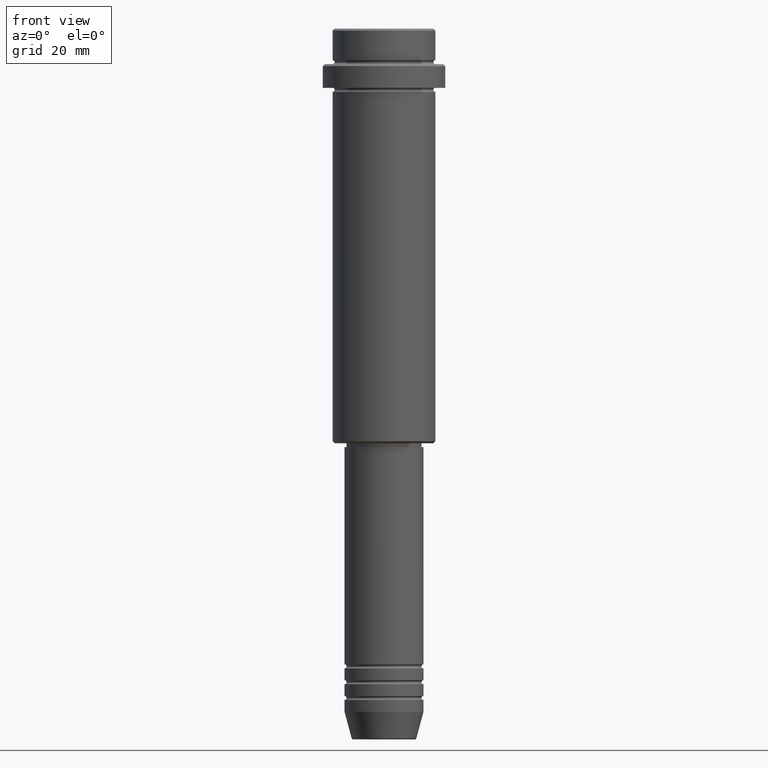
[diagram: clean part render]
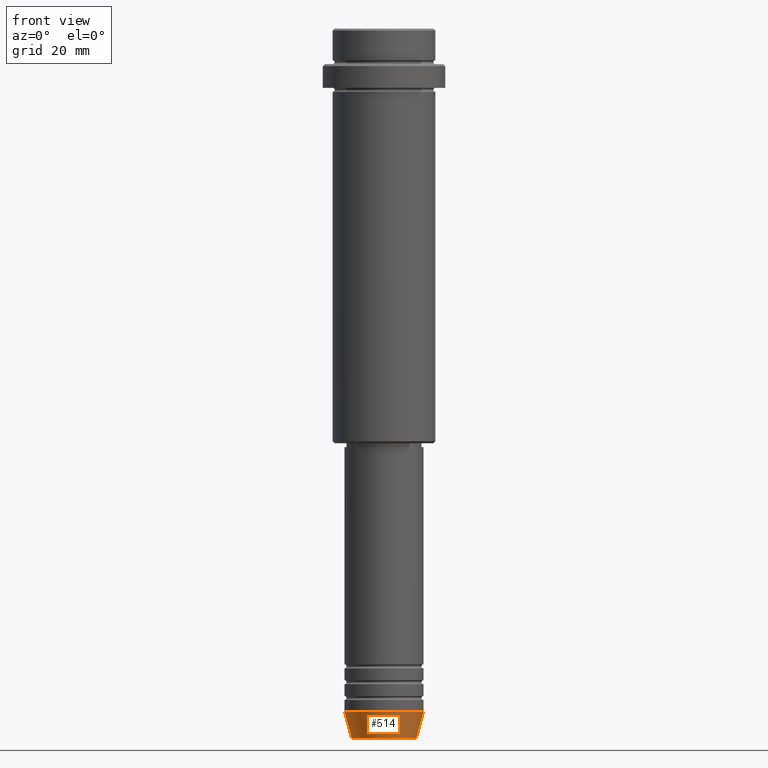
[diagram: same view with one face highlighted and labeled with its STEP entity id]
A machine part, front view. The second image highlights one B-rep face of the part: STEP entity #514.
In plain terms, the highlighted conical surface has half-angle 15 deg.
Its self-contained STEP definition (entity closure, byte-faithful):
#55 = LINE ( 'NONE', #152, #74 ) ;
#74 = VECTOR ( 'NONE', #705, 1000.000000000000000 ) ;
#91 = ORIENTED_EDGE ( 'NONE', *, *, #995, .T. ) ;
#106 = DIRECTION ( 'NONE',  ( -0.000000000000000000, -0.000000000000000000, 1.000000000000000000 ) ) ;
#152 = CARTESIAN_POINT ( 'NONE',  ( 10.00000000000000000, 0.000000000000000000, -173.0000000000000000 ) ) ;
#237 = DIRECTION ( 'NONE',  ( -0.2588190451025213501, 3.169619151431772337E-17, 0.9659258262890680902 ) ) ;
#242 = DIRECTION ( 'NONE',  ( -0.000000000000000000, -0.000000000000000000, 1.000000000000000000 ) ) ;
#244 = DIRECTION ( 'NONE',  ( -0.000000000000000000, -0.000000000000000000, 1.000000000000000000 ) ) ;
#259 = ORIENTED_EDGE ( 'NONE', *, *, #678, .T. ) ;
#323 = CIRCLE ( 'NONE', #874, 10.00000000000000000 ) ;
#330 = FACE_OUTER_BOUND ( 'NONE', #1198, .T. ) ;
#339 = CARTESIAN_POINT ( 'NONE',  ( 8.223655072137191269, 0.000000000000000000, -179.6294095225512422 ) ) ;
#413 = CIRCLE ( 'NONE', #1216, 8.223655072137191269 ) ;
#454 = CARTESIAN_POINT ( 'NONE',  ( -8.223655072137191269, 1.115877042642912054E-15, -179.6294095225512422 ) ) ;
#514 = ADVANCED_FACE ( 'NONE', ( #330 ), #827, .T. ) ;
#515 = VERTEX_POINT ( 'NONE', #339 ) ;
#552 = DIRECTION ( 'NONE',  ( 1.000000000000000000, 0.000000000000000000, 0.000000000000000000 ) ) ;
#572 = CARTESIAN_POINT ( 'NONE',  ( -10.00000000000000000, 1.224646799147353256E-15, -173.0000000000000000 ) ) ;
#678 = EDGE_CURVE ( 'NONE', #515, #1162, #55, .T. ) ;
#685 = CARTESIAN_POINT ( 'NONE',  ( 0.000000000000000000, 0.000000000000000000, -179.6294095225512422 ) ) ;
#705 = DIRECTION ( 'NONE',  ( 0.2588190451025213501, 0.000000000000000000, 0.9659258262890680902 ) ) ;
#725 = CARTESIAN_POINT ( 'NONE',  ( 10.00000000000000000, 0.000000000000000000, -173.0000000000000000 ) ) ;
#733 = ORIENTED_EDGE ( 'NONE', *, *, #975, .F. ) ;
#778 = VERTEX_POINT ( 'NONE', #956 ) ;
#783 = CARTESIAN_POINT ( 'NONE',  ( 0.000000000000000000, 0.000000000000000000, -173.0000000000000000 ) ) ;
#827 = CONICAL_SURFACE ( 'NONE', #1399, 10.00000000000000000, 0.2617993877991500740 ) ;
#873 = EDGE_CURVE ( 'NONE', #778, #1162, #323, .T. ) ;
#874 = AXIS2_PLACEMENT_3D ( 'NONE', #783, #242, #1097 ) ;
#879 = VERTEX_POINT ( 'NONE', #454 ) ;
#886 = ORIENTED_EDGE ( 'NONE', *, *, #873, .F. ) ;
#956 = CARTESIAN_POINT ( 'NONE',  ( -10.00000000000000000, 1.224646799147353256E-15, -173.0000000000000000 ) ) ;
#975 = EDGE_CURVE ( 'NONE', #879, #778, #1201, .T. ) ;
#995 = EDGE_CURVE ( 'NONE', #879, #515, #413, .T. ) ;
#1097 = DIRECTION ( 'NONE',  ( 1.000000000000000000, 0.000000000000000000, 0.000000000000000000 ) ) ;
#1162 = VERTEX_POINT ( 'NONE', #725 ) ;
#1198 = EDGE_LOOP ( 'NONE', ( #733, #91, #259, #886 ) ) ;
#1201 = LINE ( 'NONE', #572, #1236 ) ;
#1216 = AXIS2_PLACEMENT_3D ( 'NONE', #685, #106, #1313 ) ;
#1236 = VECTOR ( 'NONE', #237, 1000.000000000000000 ) ;
#1313 = DIRECTION ( 'NONE',  ( 1.000000000000000000, 0.000000000000000000, 0.000000000000000000 ) ) ;
#1321 = CARTESIAN_POINT ( 'NONE',  ( 0.000000000000000000, 0.000000000000000000, -173.0000000000000000 ) ) ;
#1399 = AXIS2_PLACEMENT_3D ( 'NONE', #1321, #244, #552 ) ;